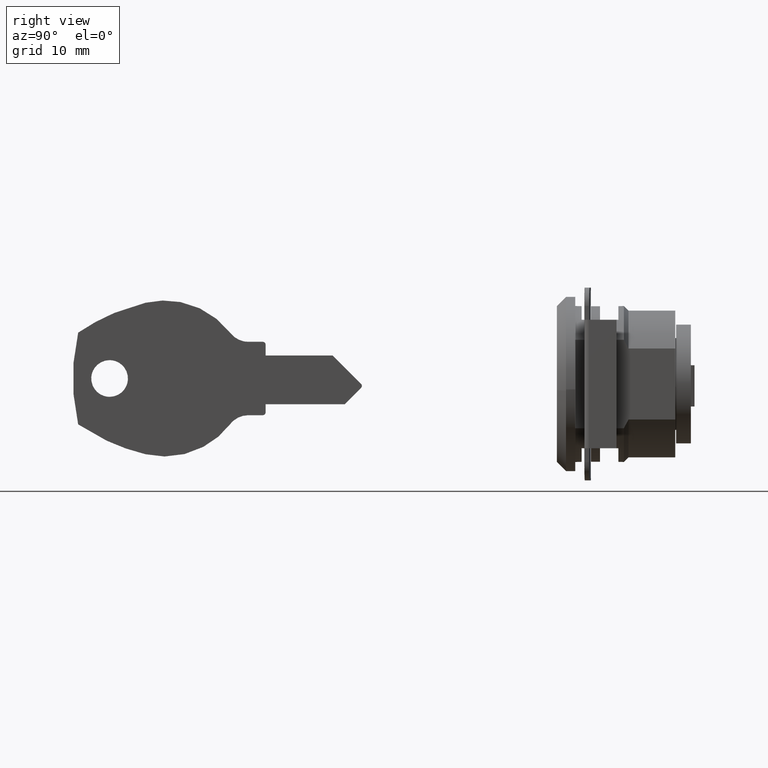
[diagram: clean part render]
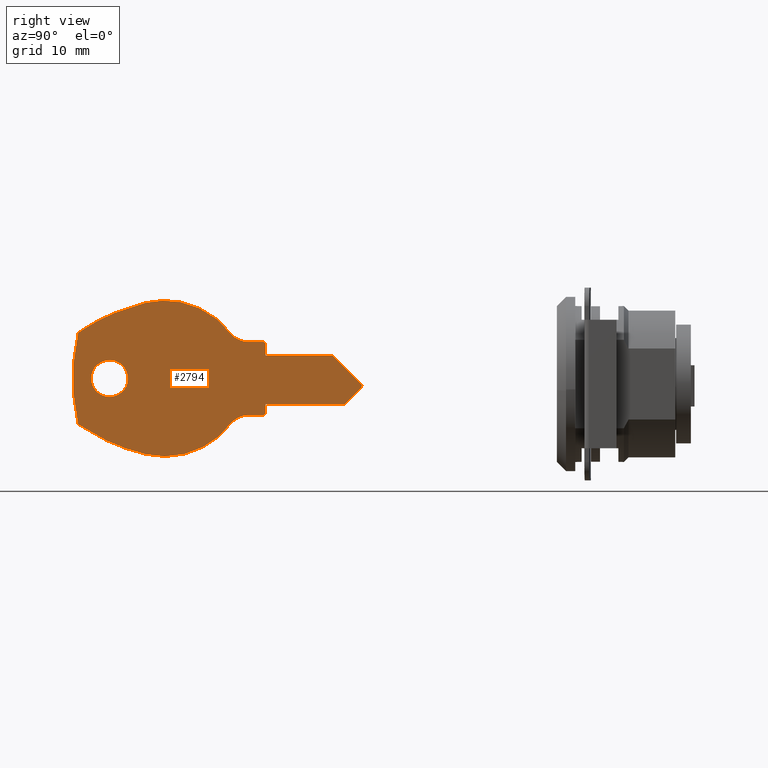
[diagram: same view with one face highlighted and labeled with its STEP entity id]
A machine part, right view. The second image highlights one B-rep face of the part: STEP entity #2794.
In plain terms, the highlighted face is a freeform B-spline surface patch.
Its self-contained STEP definition (entity closure, byte-faithful):
#2225=CARTESIAN_POINT('',(-48.753424937707891,-0.900000000000012,0.443081808396255));
#2226=VERTEX_POINT('',#2225);
#2232=CARTESIAN_POINT('',(-50.747259605162498,-0.900000000000012,2.600000000000000));
#2233=VERTEX_POINT('',#2232);
#2234=CARTESIAN_POINT('',(-48.753424937707891,-0.900000000000012,0.443081808396255));
#2235=CARTESIAN_POINT('',(-48.747259605162512,-0.900000000000012,0.521419785835920));
#2236=CARTESIAN_POINT('',(-48.747259605162498,-0.900000000000012,0.600000000000000));
#2237=CARTESIAN_POINT('',(-48.747259605162505,-0.900000000000012,2.600000000000001));
#2238=CARTESIAN_POINT('',(-50.747259605162498,-0.900000000000012,2.600000000000000));
#2246=(BOUNDED_CURVE()B_SPLINE_CURVE(2,(#2234,#2235,#2236,#2237,#2238),.UNSPECIFIED.,.F.,.U.)B_SPLINE_CURVE_WITH_KNOTS((3,2,3),(0.736331300607308,0.750000000000000,1.0),.UNSPECIFIED.)CURVE()GEOMETRIC_REPRESENTATION_ITEM()RATIONAL_B_SPLINE_CURVE((0.969723356118685,0.983986122551524,1.0,0.707106781186548,1.0))REPRESENTATION_ITEM(''));
#2247=EDGE_CURVE('',#2226,#2233,#2246,.T.);
#2249=CARTESIAN_POINT('',(-52.741094272617097,-0.900000000000012,0.756918191603745));
#2250=VERTEX_POINT('',#2249);
#2251=CARTESIAN_POINT('',(-50.747259605162498,-0.900000000000012,2.600000000000000));
#2252=CARTESIAN_POINT('',(-52.596040588203493,-0.900000000000012,2.600000000000000));
#2253=CARTESIAN_POINT('',(-52.741094272617104,-0.900000000000012,0.756918191603745));
#2261=(BOUNDED_CURVE()B_SPLINE_CURVE(2,(#2251,#2252,#2253),.UNSPECIFIED.,.F.,.U.)B_SPLINE_CURVE_WITH_KNOTS((3,3),(0.0,0.236331300607308),.UNSPECIFIED.)CURVE()GEOMETRIC_REPRESENTATION_ITEM()RATIONAL_B_SPLINE_CURVE((1.0,0.723120658635024,0.969723356118685))REPRESENTATION_ITEM(''));
#2262=EDGE_CURVE('',#2233,#2250,#2261,.T.);
#2308=CARTESIAN_POINT('',(-50.747259605162498,-0.900000000000012,-1.400000000000000));
#2309=VERTEX_POINT('',#2308);
#2310=CARTESIAN_POINT('',(-52.741094272617097,-0.900000000000012,0.756918191603745));
#2311=CARTESIAN_POINT('',(-52.747259605162505,-0.900000000000012,0.678580214164081));
#2312=CARTESIAN_POINT('',(-52.747259605162512,-0.900000000000012,0.600000000000000));
#2313=CARTESIAN_POINT('',(-52.747259605162505,-0.900000000000012,-1.400000000000000));
#2314=CARTESIAN_POINT('',(-50.747259605162498,-0.900000000000012,-1.400000000000000));
#2322=(BOUNDED_CURVE()B_SPLINE_CURVE(2,(#2310,#2311,#2312,#2313,#2314),.UNSPECIFIED.,.F.,.U.)B_SPLINE_CURVE_WITH_KNOTS((3,2,3),(0.236331300607308,0.250000000000000,0.500000000000000),.UNSPECIFIED.)CURVE()GEOMETRIC_REPRESENTATION_ITEM()RATIONAL_B_SPLINE_CURVE((0.969723356118685,0.983986122551524,1.0,0.707106781186548,1.0))REPRESENTATION_ITEM(''));
#2323=EDGE_CURVE('',#2250,#2309,#2322,.T.);
#2325=CARTESIAN_POINT('',(-50.747259605162498,-0.900000000000012,-1.400000000000000));
#2326=CARTESIAN_POINT('',(-48.898478622121502,-0.900000000000012,-1.400000000000000));
#2327=CARTESIAN_POINT('',(-48.753424937707898,-0.900000000000012,0.443081808396255));
#2335=(BOUNDED_CURVE()B_SPLINE_CURVE(2,(#2325,#2326,#2327),.UNSPECIFIED.,.F.,.U.)B_SPLINE_CURVE_WITH_KNOTS((3,3),(0.500000000000000,0.736331300607309),.UNSPECIFIED.)CURVE()GEOMETRIC_REPRESENTATION_ITEM()RATIONAL_B_SPLINE_CURVE((1.0,0.723120658635023,0.969723356118686))REPRESENTATION_ITEM(''));
#2336=EDGE_CURVE('',#2309,#2226,#2335,.T.);
#2575=CARTESIAN_POINT('',(-56.320686102992873,-0.900000000000000,9.949071701215583));
#2576=CARTESIAN_POINT('',(-21.673833757702351,-0.900000000000000,9.949071701215583));
#2577=CARTESIAN_POINT('',(-56.320686102992873,-0.900000000000000,-8.749072138238761));
#2578=CARTESIAN_POINT('',(-21.673833757702351,-0.900000000000000,-8.749072138238761));
#2579=B_SPLINE_SURFACE_WITH_KNOTS('',1,1,((#2575,#2577),(#2576,#2578)),.UNSPECIFIED.,.F.,.F.,.U.,(2,2),(2,2),(0.0,34.646852345290519),(0.0,18.698143839454350),.UNSPECIFIED.);
#2580=CARTESIAN_POINT('',(-37.606625119658702,-0.900000000000012,5.578260861414620));
#2581=VERTEX_POINT('',#2580);
#2582=CARTESIAN_POINT('',(-46.834713811401492,-0.900000000000012,8.854572602540600));
#2583=VERTEX_POINT('',#2582);
#2584=CARTESIAN_POINT('',(-37.606625119658702,-0.900000000000012,5.578260861414620));
#2585=CARTESIAN_POINT('',(-41.158544601538956,-0.900000000000012,10.208007038718991));
#2586=CARTESIAN_POINT('',(-46.834713811401492,-0.900000000000012,8.854572602540600));
#2594=(BOUNDED_CURVE()B_SPLINE_CURVE(2,(#2584,#2585,#2586),.UNSPECIFIED.,.F.,.U.)CURVE()GEOMETRIC_REPRESENTATION_ITEM()QUASI_UNIFORM_CURVE()RATIONAL_B_SPLINE_CURVE((1.0,0.839069454552870,1.0))REPRESENTATION_ITEM(''));
#2595=EDGE_CURVE('',#2581,#2583,#2594,.T.);
#2596=ORIENTED_EDGE('',*,*,#2595,.T.);
#2597=CARTESIAN_POINT('',(-54.171545150485400,-0.900000000000012,5.600000261383149));
#2598=VERTEX_POINT('',#2597);
#2599=CARTESIAN_POINT('',(-46.834713811401500,-0.900000000000012,8.854572602540605));
#2600=CARTESIAN_POINT('',(-50.805037571686150,-0.900000000000012,7.907882378062812));
#2601=CARTESIAN_POINT('',(-54.171545150485400,-0.900000000000012,5.600000261383163));
#2609=(BOUNDED_CURVE()B_SPLINE_CURVE(2,(#2599,#2600,#2601),.UNSPECIFIED.,.F.,.U.)CURVE()GEOMETRIC_REPRESENTATION_ITEM()QUASI_UNIFORM_CURVE()RATIONAL_B_SPLINE_CURVE((1.0,0.983221499424616,1.0))REPRESENTATION_ITEM(''));
#2610=EDGE_CURVE('',#2583,#2598,#2609,.T.);
#2611=ORIENTED_EDGE('',*,*,#2610,.T.);
#2612=CARTESIAN_POINT('',(-54.171544872198403,-0.900000000000012,-4.400000079666495));
#2613=VERTEX_POINT('',#2612);
#2614=CARTESIAN_POINT('',(-54.171545150485400,-0.900000000000012,5.600000261383149));
#2615=CARTESIAN_POINT('',(-55.338444994045474,-0.900000000000012,0.600000058385015));
#2616=CARTESIAN_POINT('',(-54.171544872198432,-0.900000000000012,-4.400000079666500));
#2624=(BOUNDED_CURVE()B_SPLINE_CURVE(2,(#2614,#2615,#2616),.UNSPECIFIED.,.F.,.U.)CURVE()GEOMETRIC_REPRESENTATION_ITEM()QUASI_UNIFORM_CURVE()RATIONAL_B_SPLINE_CURVE((1.0,0.973831147914268,1.0))REPRESENTATION_ITEM(''));
#2625=EDGE_CURVE('',#2598,#2613,#2624,.T.);
#2626=ORIENTED_EDGE('',*,*,#2625,.T.);
#2627=CARTESIAN_POINT('',(-46.834713811401599,-0.900000000000012,-7.654572602540380));
#2628=VERTEX_POINT('',#2627);
#2629=CARTESIAN_POINT('',(-54.171544872198403,-0.900000000000012,-4.400000079666495));
#2630=CARTESIAN_POINT('',(-50.805037507901616,-0.900000000000012,-6.707882393271475));
#2631=CARTESIAN_POINT('',(-46.834713811401599,-0.900000000000012,-7.654572602540382));
#2639=(BOUNDED_CURVE()B_SPLINE_CURVE(2,(#2629,#2630,#2631),.UNSPECIFIED.,.F.,.U.)CURVE()GEOMETRIC_REPRESENTATION_ITEM()QUASI_UNIFORM_CURVE()RATIONAL_B_SPLINE_CURVE((1.0,0.983221499950229,1.0))REPRESENTATION_ITEM(''));
#2640=EDGE_CURVE('',#2613,#2628,#2639,.T.);
#2641=ORIENTED_EDGE('',*,*,#2640,.T.);
#2642=CARTESIAN_POINT('',(-37.606625352975954,-0.900000000000012,-4.378260898907620));
#2643=VERTEX_POINT('',#2642);
#2644=CARTESIAN_POINT('',(-46.834713811401599,-0.900000000000012,-7.654572602540380));
#2645=CARTESIAN_POINT('',(-41.158544720199117,-0.900000000000012,-9.008007010425466));
#2646=CARTESIAN_POINT('',(-37.606625352975961,-0.900000000000012,-4.378260898907617));
#2654=(BOUNDED_CURVE()B_SPLINE_CURVE(2,(#2644,#2645,#2646),.UNSPECIFIED.,.F.,.U.)CURVE()GEOMETRIC_REPRESENTATION_ITEM()QUASI_UNIFORM_CURVE()RATIONAL_B_SPLINE_CURVE((1.0,0.839069459744259,1.0))REPRESENTATION_ITEM(''));
#2655=EDGE_CURVE('',#2628,#2643,#2654,.T.);
#2656=ORIENTED_EDGE('',*,*,#2655,.T.);
#2657=CARTESIAN_POINT('',(-35.623115605162447,-0.900000000000012,-3.400000000000000));
#2658=VERTEX_POINT('',#2657);
#2659=CARTESIAN_POINT('',(-35.623115605162447,-0.900000000000012,-3.400000000000000));
#2660=CARTESIAN_POINT('',(-36.856108110340344,-0.900000000000012,-3.400000000000000));
#2661=CARTESIAN_POINT('',(-37.606625352975954,-0.900000000000012,-4.378260898907620));
#2669=(BOUNDED_CURVE()B_SPLINE_CURVE(2,(#2659,#2660,#2661),.UNSPECIFIED.,.F.,.U.)CURVE()GEOMETRIC_REPRESENTATION_ITEM()QUASI_UNIFORM_CURVE()RATIONAL_B_SPLINE_CURVE((1.0,0.896854392006349,1.0))REPRESENTATION_ITEM(''));
#2670=EDGE_CURVE('',#2658,#2643,#2669,.T.);
#2671=ORIENTED_EDGE('',*,*,#2670,.F.);
#2672=CARTESIAN_POINT('',(-34.047259605162452,-0.900000000000012,-3.399999999999910));
#2673=VERTEX_POINT('',#2672);
#2674=CARTESIAN_POINT('',(-35.623115605162447,-0.900000000000012,-3.400000000000000));
#2675=CARTESIAN_POINT('',(-34.047259605162452,-0.900000000000012,-3.399999999999910));
#2676=QUASI_UNIFORM_CURVE('',1,(#2674,#2675),.UNSPECIFIED.,.F.,.U.);
#2677=EDGE_CURVE('',#2658,#2673,#2676,.T.);
#2678=ORIENTED_EDGE('',*,*,#2677,.T.);
#2679=CARTESIAN_POINT('',(-33.747259605162448,-0.900000000000012,-3.100000000000100));
#2680=VERTEX_POINT('',#2679);
#2681=CARTESIAN_POINT('',(-34.047259605162452,-0.900000000000012,-3.399999999999910));
#2682=CARTESIAN_POINT('',(-33.747259605162441,-0.900000000000012,-3.400000000000100));
#2683=CARTESIAN_POINT('',(-33.747259605162441,-0.900000000000012,-3.100000000000100));
#2691=(BOUNDED_CURVE()B_SPLINE_CURVE(2,(#2681,#2682,#2683),.UNSPECIFIED.,.F.,.U.)CURVE()GEOMETRIC_REPRESENTATION_ITEM()QUASI_UNIFORM_CURVE()RATIONAL_B_SPLINE_CURVE((1.0,0.707106781186547,1.0))REPRESENTATION_ITEM(''));
#2692=EDGE_CURVE('',#2673,#2680,#2691,.T.);
#2693=ORIENTED_EDGE('',*,*,#2692,.T.);
#2694=CARTESIAN_POINT('',(-33.747259605162448,-0.900000000000012,-2.200000000000090));
#2695=VERTEX_POINT('',#2694);
#2696=CARTESIAN_POINT('',(-33.747259605162448,-0.900000000000012,-3.100000000000100));
#2697=CARTESIAN_POINT('',(-33.747259605162448,-0.900000000000012,-2.200000000000090));
#2698=QUASI_UNIFORM_CURVE('',1,(#2696,#2697),.UNSPECIFIED.,.F.,.U.);
#2699=EDGE_CURVE('',#2680,#2695,#2698,.T.);
#2700=ORIENTED_EDGE('',*,*,#2699,.T.);
#2701=CARTESIAN_POINT('',(-25.122995605162451,-0.900000000000012,-2.200000000000090));
#2702=VERTEX_POINT('',#2701);
#2703=CARTESIAN_POINT('',(-33.747259605162448,-0.900000000000012,-2.200000000000090));
#2704=CARTESIAN_POINT('',(-25.122995605162451,-0.900000000000012,-2.200000000000090));
#2705=QUASI_UNIFORM_CURVE('',1,(#2703,#2704),.UNSPECIFIED.,.F.,.U.);
#2706=EDGE_CURVE('',#2695,#2702,#2705,.T.);
#2707=ORIENTED_EDGE('',*,*,#2706,.T.);
#2708=CARTESIAN_POINT('',(-23.335127605162452,-0.900000000000012,-0.412132000000000));
#2709=VERTEX_POINT('',#2708);
#2710=CARTESIAN_POINT('',(-25.122995605162451,-0.900000000000012,-2.200000000000090));
#2711=CARTESIAN_POINT('',(-23.335127605162452,-0.900000000000012,-0.412132000000000));
#2712=QUASI_UNIFORM_CURVE('',1,(#2710,#2711),.UNSPECIFIED.,.F.,.U.);
#2713=EDGE_CURVE('',#2702,#2709,#2712,.T.);
#2714=ORIENTED_EDGE('',*,*,#2713,.T.);
#2715=CARTESIAN_POINT('',(-23.335127570806499,-0.900000000000012,0.012132034355873));
#2716=VERTEX_POINT('',#2715);
#2717=CARTESIAN_POINT('',(-23.335127605162452,-0.900000000000012,-0.412132000000000));
#2718=CARTESIAN_POINT('',(-23.122995536450563,-0.900000000000012,-0.200000000000039));
#2719=CARTESIAN_POINT('',(-23.335127570806488,-0.900000000000012,0.012132034355881));
#2727=(BOUNDED_CURVE()B_SPLINE_CURVE(2,(#2717,#2718,#2719),.UNSPECIFIED.,.F.,.U.)CURVE()GEOMETRIC_REPRESENTATION_ITEM()QUASI_UNIFORM_CURVE()RATIONAL_B_SPLINE_CURVE((1.0,0.707106781186608,1.0))REPRESENTATION_ITEM(''));
#2728=EDGE_CURVE('',#2709,#2716,#2727,.T.);
#2729=ORIENTED_EDGE('',*,*,#2728,.T.);
#2730=CARTESIAN_POINT('',(-26.422995605162448,-0.900000000000012,3.100000000000090));
#2731=VERTEX_POINT('',#2730);
#2732=CARTESIAN_POINT('',(-23.335127570806499,-0.900000000000012,0.012132034355873));
#2733=CARTESIAN_POINT('',(-26.422995605162448,-0.900000000000012,3.100000000000090));
#2734=QUASI_UNIFORM_CURVE('',1,(#2732,#2733),.UNSPECIFIED.,.F.,.U.);
#2735=EDGE_CURVE('',#2716,#2731,#2734,.T.);
#2736=ORIENTED_EDGE('',*,*,#2735,.T.);
#2737=CARTESIAN_POINT('',(-33.747259605162448,-0.900000000000012,3.100000000000090));
#2738=VERTEX_POINT('',#2737);
#2739=CARTESIAN_POINT('',(-26.422995605162448,-0.900000000000012,3.100000000000090));
#2740=CARTESIAN_POINT('',(-33.747259605162448,-0.900000000000012,3.100000000000090));
#2741=QUASI_UNIFORM_CURVE('',1,(#2739,#2740),.UNSPECIFIED.,.F.,.U.);
#2742=EDGE_CURVE('',#2731,#2738,#2741,.T.);
#2743=ORIENTED_EDGE('',*,*,#2742,.T.);
#2744=CARTESIAN_POINT('',(-33.747259605162448,-0.900000000000012,4.299999999999910));
#2745=VERTEX_POINT('',#2744);
#2746=CARTESIAN_POINT('',(-33.747259605162448,-0.900000000000012,3.100000000000090));
#2747=CARTESIAN_POINT('',(-33.747259605162448,-0.900000000000012,4.299999999999910));
#2748=QUASI_UNIFORM_CURVE('',1,(#2746,#2747),.UNSPECIFIED.,.F.,.U.);
#2749=EDGE_CURVE('',#2738,#2745,#2748,.T.);
#2750=ORIENTED_EDGE('',*,*,#2749,.T.);
#2751=CARTESIAN_POINT('',(-34.047259605162452,-0.900000000000012,4.599999999999910));
#2752=VERTEX_POINT('',#2751);
#2753=CARTESIAN_POINT('',(-33.747259605162441,-0.900000000000012,4.299999999999910));
#2754=CARTESIAN_POINT('',(-33.747259605162441,-0.900000000000012,4.599999999999910));
#2755=CARTESIAN_POINT('',(-34.047259605162452,-0.900000000000012,4.599999999999910));
#2763=(BOUNDED_CURVE()B_SPLINE_CURVE(2,(#2753,#2754,#2755),.UNSPECIFIED.,.F.,.U.)CURVE()GEOMETRIC_REPRESENTATION_ITEM()QUASI_UNIFORM_CURVE()RATIONAL_B_SPLINE_CURVE((1.0,0.707106781186547,1.0))REPRESENTATION_ITEM(''));
#2764=EDGE_CURVE('',#2745,#2752,#2763,.T.);
#2765=ORIENTED_EDGE('',*,*,#2764,.T.);
#2766=CARTESIAN_POINT('',(-35.623115605162447,-0.900000000000012,4.600000000000000));
#2767=VERTEX_POINT('',#2766);
#2768=CARTESIAN_POINT('',(-34.047259605162452,-0.900000000000012,4.599999999999910));
#2769=CARTESIAN_POINT('',(-35.623115605162447,-0.900000000000012,4.600000000000000));
#2770=QUASI_UNIFORM_CURVE('',1,(#2768,#2769),.UNSPECIFIED.,.F.,.U.);
#2771=EDGE_CURVE('',#2752,#2767,#2770,.T.);
#2772=ORIENTED_EDGE('',*,*,#2771,.T.);
#2773=CARTESIAN_POINT('',(-37.606625119658702,-0.900000000000012,5.578260861414620));
#2774=CARTESIAN_POINT('',(-36.856108003566675,-0.900000000000012,4.600000000000090));
#2775=CARTESIAN_POINT('',(-35.623115605162447,-0.900000000000012,4.600000000000090));
#2783=(BOUNDED_CURVE()B_SPLINE_CURVE(2,(#2773,#2774,#2775),.UNSPECIFIED.,.F.,.U.)CURVE()GEOMETRIC_REPRESENTATION_ITEM()QUASI_UNIFORM_CURVE()RATIONAL_B_SPLINE_CURVE((1.0,0.896854407201690,1.0))REPRESENTATION_ITEM(''));
#2784=EDGE_CURVE('',#2581,#2767,#2783,.T.);
#2785=ORIENTED_EDGE('',*,*,#2784,.F.);
#2786=EDGE_LOOP('',(#2596,#2611,#2626,#2641,#2656,#2671,#2678,#2693,#2700,#2707,#2714,#2729,#2736,#2743,#2750,#2765,#2772,#2785));
#2787=FACE_OUTER_BOUND('',#2786,.T.);
#2788=ORIENTED_EDGE('',*,*,#2336,.F.);
#2789=ORIENTED_EDGE('',*,*,#2323,.F.);
#2790=ORIENTED_EDGE('',*,*,#2262,.F.);
#2791=ORIENTED_EDGE('',*,*,#2247,.F.);
#2792=EDGE_LOOP('',(#2788,#2789,#2790,#2791));
#2793=FACE_BOUND('',#2792,.T.);
#2794=ADVANCED_FACE('',(#2787,#2793),#2579,.F.);